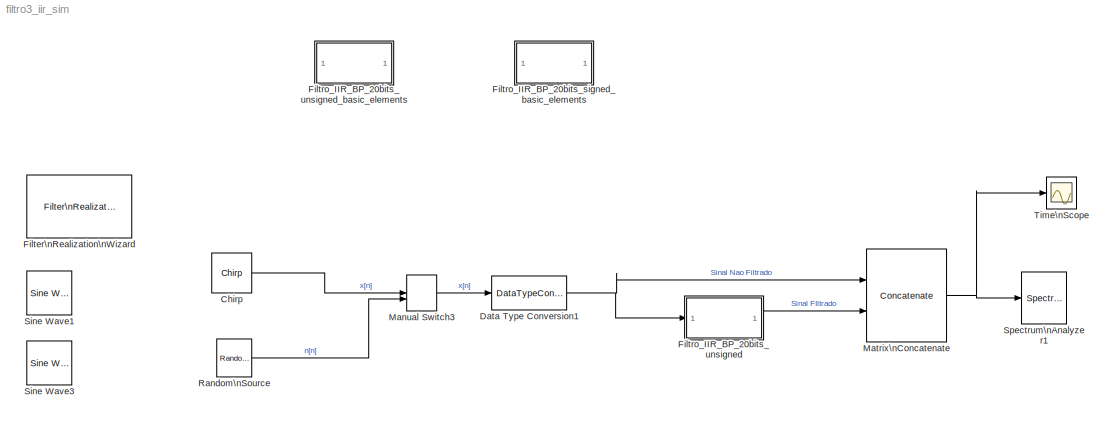
MODEL filtro3_iir_sim
KIND model
BLOCK [Reference] Chirp  REF=dspsrcs4/Chirp
  MultiThreadCoSim = auto
  OutputFrames = on
  Ports = [0, 1]
  SID = 1
  SourceBlock = dspsrcs4/Chirp
  SourceProductBaseCode = DS
  SourceProductName = DSP System Toolbox
  SourceType = Chirp
  Ts = Ta
  Tsweep = 1
  datatype = Double
  f0 = 0
  f1 = fa/2
  mode = Unidirectional
  phase = 0
  spf = spf
  sweep = Linear
  t1 = 1
BLOCK [DataTypeConversion] Data Type Conversion1
  RndMeth = Floor
  SID = 22
  SaturateOnIntegerOverflow = off
BLOCK [Reference] Filter\nRealization\nWizard  REF=dsparch4/Filter\nRealization\nWizard
  Ports = []
  SID = 44
  SourceBlock = dsparch4/Filter\nRealization\nWizard
  SourceProductBaseCode = DS
  SourceProductName = DSP System Toolbox
  SourceType = Filter Realization Wizard
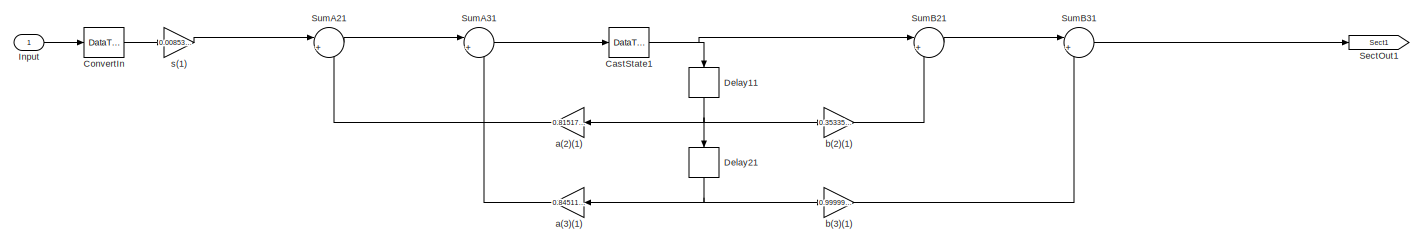
[diagram: Filtro_IIR_BP_20bits_signed_basic_elements - part 1/4, left side, full height]
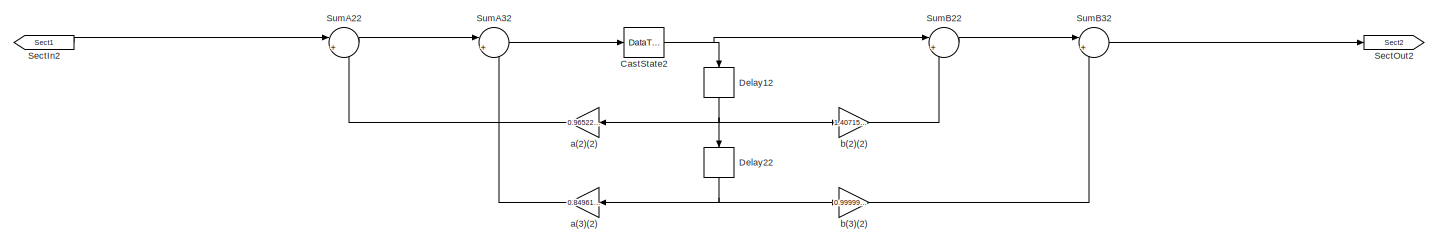
[diagram: Filtro_IIR_BP_20bits_signed_basic_elements - part 2/4, center side, full height]
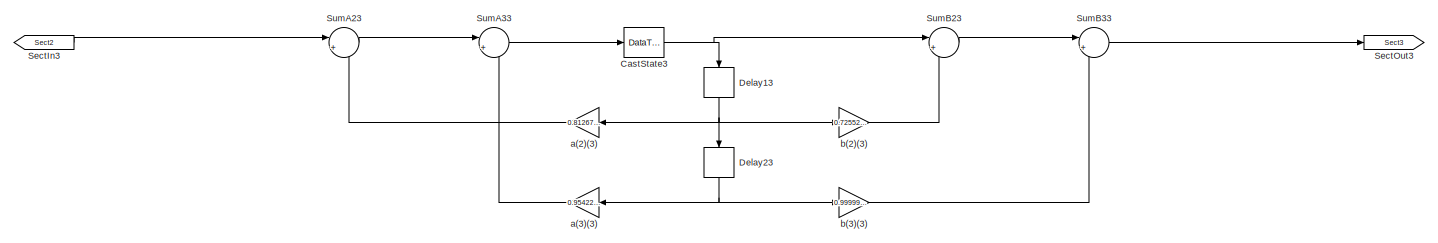
[diagram: Filtro_IIR_BP_20bits_signed_basic_elements - part 3/4, center side, full height]
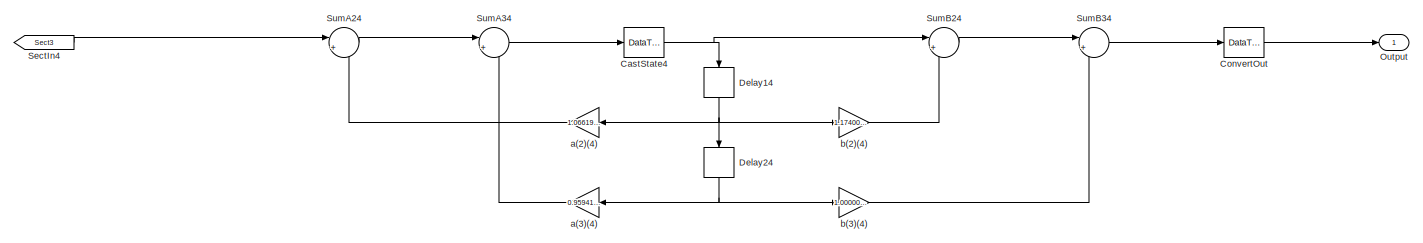
[diagram: Filtro_IIR_BP_20bits_signed_basic_elements - part 4/4, right side, full height]
BLOCK [SubSystem] Filtro_IIR_BP_20bits_signed_basic_elements
  Commented = on
  ErrorFcn = dspFilterRealizedInBasicElemsAlgLoopErrFcnCallback
  Ports = [1, 1]
  RequestExecContextInheritance = off
  SID = 293
  Tag = FilterWizardSubSystem
  UserData = DataTag0
  UserDataPersistent = on
BLOCK [DataTypeConversion] Filtro_IIR_BP_20bits_signed_basic_elements/CastState1
  OutDataTypeStr = fixdt(1,16,7)
  RndMeth = Convergent
  SID = 298
  SaturateOnIntegerOverflow = off
BLOCK [DataTypeConversion] Filtro_IIR_BP_20bits_signed_basic_elements/CastState2
  OutDataTypeStr = fixdt(1,16,7)
  RndMeth = Convergent
  SID = 312
  SaturateOnIntegerOverflow = off
BLOCK [DataTypeConversion] Filtro_IIR_BP_20bits_signed_basic_elements/CastState3
  OutDataTypeStr = fixdt(1,16,7)
  RndMeth = Convergent
  SID = 325
  SaturateOnIntegerOverflow = off
BLOCK [DataTypeConversion] Filtro_IIR_BP_20bits_signed_basic_elements/CastState4
  OutDataTypeStr = fixdt(1,16,7)
  RndMeth = Convergent
  SID = 338
  SaturateOnIntegerOverflow = off
BLOCK [DataTypeConversion] Filtro_IIR_BP_20bits_signed_basic_elements/ConvertIn
  OutDataTypeStr = fixdt(1,16,15)
  RndMeth = Nearest
  SID = 308
BLOCK [DataTypeConversion] Filtro_IIR_BP_20bits_signed_basic_elements/ConvertOut
  OutDataTypeStr = fixdt(1,16,3)
  RndMeth = Convergent
  SID = 348
  SaturateOnIntegerOverflow = off
BLOCK [Delay] Filtro_IIR_BP_20bits_signed_basic_elements/Delay11
  DelayLength = 1
  InitialCondition = 0
  InputPortMap = u0
  Ports = [1, 1]
  SID = 303
BLOCK [Delay] Filtro_IIR_BP_20bits_signed_basic_elements/Delay12
  DelayLength = 1
  InitialCondition = 0
  InputPortMap = u0
  Ports = [1, 1]
  SID = 317
BLOCK [Delay] Filtro_IIR_BP_20bits_signed_basic_elements/Delay13
  DelayLength = 1
  InitialCondition = 0
  InputPortMap = u0
  Ports = [1, 1]
  SID = 330
BLOCK [Delay] Filtro_IIR_BP_20bits_signed_basic_elements/Delay14
  DelayLength = 1
  InitialCondition = 0
  InputPortMap = u0
  Ports = [1, 1]
  SID = 343
BLOCK [Delay] Filtro_IIR_BP_20bits_signed_basic_elements/Delay21
  DelayLength = 1
  InitialCondition = 0
  InputPortMap = u0
  Ports = [1, 1]
  SID = 306
BLOCK [Delay] Filtro_IIR_BP_20bits_signed_basic_elements/Delay22
  DelayLength = 1
  InitialCondition = 0
  InputPortMap = u0
  Ports = [1, 1]
  SID = 320
BLOCK [Delay] Filtro_IIR_BP_20bits_signed_basic_elements/Delay23
  DelayLength = 1
  InitialCondition = 0
  InputPortMap = u0
  Ports = [1, 1]
  SID = 333
BLOCK [Delay] Filtro_IIR_BP_20bits_signed_basic_elements/Delay24
  DelayLength = 1
  InitialCondition = 0
  InputPortMap = u0
  Ports = [1, 1]
  SID = 346
BLOCK [Inport] Filtro_IIR_BP_20bits_signed_basic_elements/Input
  IconDisplay = Port number
  SID = 294
BLOCK [Outport] Filtro_IIR_BP_20bits_signed_basic_elements/Output
  IconDisplay = Port number
  SID = 341
BLOCK [From] Filtro_IIR_BP_20bits_signed_basic_elements/SectIn2
  GotoTag = Sect1
  SID = 309
BLOCK [From] Filtro_IIR_BP_20bits_signed_basic_elements/SectIn3
  GotoTag = Sect2
  SID = 322
BLOCK [From] Filtro_IIR_BP_20bits_signed_basic_elements/SectIn4
  GotoTag = Sect3
  SID = 335
BLOCK [Goto] Filtro_IIR_BP_20bits_signed_basic_elements/SectOut1
  GotoTag = Sect1
  SID = 301
BLOCK [Goto] Filtro_IIR_BP_20bits_signed_basic_elements/SectOut2
  GotoTag = Sect2
  SID = 315
BLOCK [Goto] Filtro_IIR_BP_20bits_signed_basic_elements/SectOut3
  GotoTag = Sect3
  SID = 328
BLOCK [Sum] Filtro_IIR_BP_20bits_signed_basic_elements/SumA21
  AccumDataTypeStr = fixdt(1,40,25)
  IconShape = round
  InputSameDT = off
  Inputs = |+-
  OutDataTypeStr = fixdt(1,40,25)
  Ports = [2, 1]
  RndMeth = Convergent
  SID = 296
  SaturateOnIntegerOverflow = off
BLOCK [Sum] Filtro_IIR_BP_20bits_signed_basic_elements/SumA22
  AccumDataTypeStr = fixdt(1,40,25)
  IconShape = round
  InputSameDT = off
  Inputs = |+-
  OutDataTypeStr = fixdt(1,40,25)
  Ports = [2, 1]
  RndMeth = Convergent
  SID = 310
  SaturateOnIntegerOverflow = off
BLOCK [Sum] Filtro_IIR_BP_20bits_signed_basic_elements/SumA23
  AccumDataTypeStr = fixdt(1,40,25)
  IconShape = round
  InputSameDT = off
  Inputs = |+-
  OutDataTypeStr = fixdt(1,40,25)
  Ports = [2, 1]
  RndMeth = Convergent
  SID = 323
  SaturateOnIntegerOverflow = off
BLOCK [Sum] Filtro_IIR_BP_20bits_signed_basic_elements/SumA24
  AccumDataTypeStr = fixdt(1,40,25)
  IconShape = round
  InputSameDT = off
  Inputs = |+-
  OutDataTypeStr = fixdt(1,40,25)
  Ports = [2, 1]
  RndMeth = Convergent
  SID = 336
  SaturateOnIntegerOverflow = off
BLOCK [Sum] Filtro_IIR_BP_20bits_signed_basic_elements/SumA31
  AccumDataTypeStr = fixdt(1,40,25)
  IconShape = round
  InputSameDT = off
  Inputs = |+-
  OutDataTypeStr = fixdt(1,40,25)
  Ports = [2, 1]
  RndMeth = Convergent
  SID = 297
  SaturateOnIntegerOverflow = off
BLOCK [Sum] Filtro_IIR_BP_20bits_signed_basic_elements/SumA32
  AccumDataTypeStr = fixdt(1,40,25)
  IconShape = round
  InputSameDT = off
  Inputs = |+-
  OutDataTypeStr = fixdt(1,40,25)
  Ports = [2, 1]
  RndMeth = Convergent
  SID = 311
  SaturateOnIntegerOverflow = off
BLOCK [Sum] Filtro_IIR_BP_20bits_signed_basic_elements/SumA33
  AccumDataTypeStr = fixdt(1,40,25)
  IconShape = round
  InputSameDT = off
  Inputs = |+-
  OutDataTypeStr = fixdt(1,40,25)
  Ports = [2, 1]
  RndMeth = Convergent
  SID = 324
  SaturateOnIntegerOverflow = off
BLOCK [Sum] Filtro_IIR_BP_20bits_signed_basic_elements/SumA34
  AccumDataTypeStr = fixdt(1,40,25)
  IconShape = round
  InputSameDT = off
  Inputs = |+-
  OutDataTypeStr = fixdt(1,40,25)
  Ports = [2, 1]
  RndMeth = Convergent
  SID = 337
  SaturateOnIntegerOverflow = off
BLOCK [Sum] Filtro_IIR_BP_20bits_signed_basic_elements/SumB21
  AccumDataTypeStr = fixdt(1,40,25)
  IconShape = round
  InputSameDT = off
  Inputs = |++
  OutDataTypeStr = fixdt(1,40,25)
  Ports = [2, 1]
  RndMeth = Convergent
  SID = 299
  SaturateOnIntegerOverflow = off
BLOCK [Sum] Filtro_IIR_BP_20bits_signed_basic_elements/SumB22
  AccumDataTypeStr = fixdt(1,40,25)
  IconShape = round
  InputSameDT = off
  Inputs = |++
  OutDataTypeStr = fixdt(1,40,25)
  Ports = [2, 1]
  RndMeth = Convergent
  SID = 313
  SaturateOnIntegerOverflow = off
BLOCK [Sum] Filtro_IIR_BP_20bits_signed_basic_elements/SumB23
  AccumDataTypeStr = fixdt(1,40,25)
  IconShape = round
  InputSameDT = off
  Inputs = |++
  OutDataTypeStr = fixdt(1,40,25)
  Ports = [2, 1]
  RndMeth = Convergent
  SID = 326
  SaturateOnIntegerOverflow = off
BLOCK [Sum] Filtro_IIR_BP_20bits_signed_basic_elements/SumB24
  AccumDataTypeStr = fixdt(1,40,25)
  IconShape = round
  InputSameDT = off
  Inputs = |++
  OutDataTypeStr = fixdt(1,40,25)
  Ports = [2, 1]
  RndMeth = Convergent
  SID = 339
  SaturateOnIntegerOverflow = off
BLOCK [Sum] Filtro_IIR_BP_20bits_signed_basic_elements/SumB31
  AccumDataTypeStr = fixdt(1,40,25)
  IconShape = round
  InputSameDT = off
  Inputs = |++
  OutDataTypeStr = fixdt(1,40,25)
  Ports = [2, 1]
  RndMeth = Convergent
  SID = 300
  SaturateOnIntegerOverflow = off
BLOCK [Sum] Filtro_IIR_BP_20bits_signed_basic_elements/SumB32
  AccumDataTypeStr = fixdt(1,40,25)
  IconShape = round
  InputSameDT = off
  Inputs = |++
  OutDataTypeStr = fixdt(1,40,25)
  Ports = [2, 1]
  RndMeth = Convergent
  SID = 314
  SaturateOnIntegerOverflow = off
BLOCK [Sum] Filtro_IIR_BP_20bits_signed_basic_elements/SumB33
  AccumDataTypeStr = fixdt(1,40,25)
  IconShape = round
  InputSameDT = off
  Inputs = |++
  OutDataTypeStr = fixdt(1,40,25)
  Ports = [2, 1]
  RndMeth = Convergent
  SID = 327
  SaturateOnIntegerOverflow = off
BLOCK [Sum] Filtro_IIR_BP_20bits_signed_basic_elements/SumB34
  AccumDataTypeStr = fixdt(1,40,25)
  IconShape = round
  InputSameDT = off
  Inputs = |++
  OutDataTypeStr = fixdt(1,40,25)
  Ports = [2, 1]
  RndMeth = Convergent
  SID = 340
  SaturateOnIntegerOverflow = off
BLOCK [Gain] Filtro_IIR_BP_20bits_signed_basic_elements/a(2)(1)
  Gain = 0.815172116422795856
  OutDataTypeStr = fixdt(1,36,25)
  ParamDataTypeStr = fixdt(1,20,18)
  RndMeth = Convergent
  SID = 302
  SaturateOnIntegerOverflow = off
BLOCK [Gain] Filtro_IIR_BP_20bits_signed_basic_elements/a(2)(2)
  Gain = 0.965222524324071074
  OutDataTypeStr = fixdt(1,36,25)
  ParamDataTypeStr = fixdt(1,20,18)
  RndMeth = Convergent
  SID = 316
  SaturateOnIntegerOverflow = off
BLOCK [Gain] Filtro_IIR_BP_20bits_signed_basic_elements/a(2)(3)
  Gain = 0.812677067672732178
  OutDataTypeStr = fixdt(1,36,25)
  ParamDataTypeStr = fixdt(1,20,18)
  RndMeth = Convergent
  SID = 329
  SaturateOnIntegerOverflow = off
BLOCK [Gain] Filtro_IIR_BP_20bits_signed_basic_elements/a(2)(4)
  Gain = 1.06619953181477434
  OutDataTypeStr = fixdt(1,36,25)
  ParamDataTypeStr = fixdt(1,20,18)
  RndMeth = Convergent
  SID = 342
  SaturateOnIntegerOverflow = off
BLOCK [Gain] Filtro_IIR_BP_20bits_signed_basic_elements/a(3)(1)
  Gain = 0.84511606787441651
  OutDataTypeStr = fixdt(1,36,25)
  ParamDataTypeStr = fixdt(1,20,18)
  RndMeth = Convergent
  SID = 305
  SaturateOnIntegerOverflow = off
BLOCK [Gain] Filtro_IIR_BP_20bits_signed_basic_elements/a(3)(2)
  Gain = 0.849612172298827684
  OutDataTypeStr = fixdt(1,36,25)
  ParamDataTypeStr = fixdt(1,20,18)
  RndMeth = Convergent
  SID = 319
  SaturateOnIntegerOverflow = off
BLOCK [Gain] Filtro_IIR_BP_20bits_signed_basic_elements/a(3)(3)
  Gain = 0.954225136114986938
  OutDataTypeStr = fixdt(1,36,25)
  ParamDataTypeStr = fixdt(1,20,18)
  RndMeth = Convergent
  SID = 332
  SaturateOnIntegerOverflow = off
BLOCK [Gain] Filtro_IIR_BP_20bits_signed_basic_elements/a(3)(4)
  Gain = 0.959417921755534975
  OutDataTypeStr = fixdt(1,36,25)
  ParamDataTypeStr = fixdt(1,20,18)
  RndMeth = Convergent
  SID = 345
  SaturateOnIntegerOverflow = off
BLOCK [Gain] Filtro_IIR_BP_20bits_signed_basic_elements/b(2)(1)
  Gain = 0.353353948679126395
  OutDataTypeStr = fixdt(1,36,25)
  ParamDataTypeStr = fixdt(1,20,18)
  RndMeth = Convergent
  SID = 304
  SaturateOnIntegerOverflow = off
BLOCK [Gain] Filtro_IIR_BP_20bits_signed_basic_elements/b(2)(2)
  Gain = 1.40715579232338883
  OutDataTypeStr = fixdt(1,36,25)
  ParamDataTypeStr = fixdt(1,20,18)
  RndMeth = Convergent
  SID = 318
  SaturateOnIntegerOverflow = off
BLOCK [Gain] Filtro_IIR_BP_20bits_signed_basic_elements/b(2)(3)
  Gain = 0.725520024065602454
  OutDataTypeStr = fixdt(1,36,25)
  ParamDataTypeStr = fixdt(1,20,18)
  RndMeth = Convergent
  SID = 331
  SaturateOnIntegerOverflow = off
BLOCK [Gain] Filtro_IIR_BP_20bits_signed_basic_elements/b(2)(4)
  Gain = 1.17400488535383563
  OutDataTypeStr = fixdt(1,36,25)
  ParamDataTypeStr = fixdt(1,20,18)
  RndMeth = Convergent
  SID = 344
  SaturateOnIntegerOverflow = off
BLOCK [Gain] Filtro_IIR_BP_20bits_signed_basic_elements/b(3)(1)
  Gain = 0.999999999999989342
  OutDataTypeStr = fixdt(1,36,25)
  ParamDataTypeStr = fixdt(1,20,18)
  RndMeth = Convergent
  SID = 307
  SaturateOnIntegerOverflow = off
BLOCK [Gain] Filtro_IIR_BP_20bits_signed_basic_elements/b(3)(2)
  Gain = 0.999999999999974687
  OutDataTypeStr = fixdt(1,36,25)
  ParamDataTypeStr = fixdt(1,20,18)
  RndMeth = Convergent
  SID = 321
  SaturateOnIntegerOverflow = off
BLOCK [Gain] Filtro_IIR_BP_20bits_signed_basic_elements/b(3)(3)
  Gain = 0.999999999999999445
  OutDataTypeStr = fixdt(1,36,25)
  ParamDataTypeStr = fixdt(1,20,18)
  RndMeth = Convergent
  SID = 334
  SaturateOnIntegerOverflow = off
BLOCK [Gain] Filtro_IIR_BP_20bits_signed_basic_elements/b(3)(4)
  Gain = 1.00000000000004086
  OutDataTypeStr = fixdt(1,36,25)
  ParamDataTypeStr = fixdt(1,20,18)
  RndMeth = Convergent
  SID = 347
  SaturateOnIntegerOverflow = off
BLOCK [Gain] Filtro_IIR_BP_20bits_signed_basic_elements/s(1)
  Gain = 0.00853204727172851562
  OutDataTypeStr = fixdt(1,16,8)
  ParamDataTypeStr = fixdt(1,20,25)
  RndMeth = Convergent
  SID = 295
  SaturateOnIntegerOverflow = off
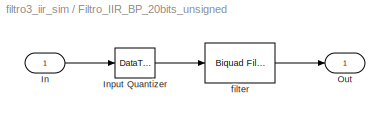
BLOCK [SubSystem] Filtro_IIR_BP_20bits_unsigned
  Ports = [1, 1]
  RequestExecContextInheritance = off
  SID = 232
  Tag = BlockMethodSubSystem
BLOCK [Inport] Filtro_IIR_BP_20bits_unsigned/In
  IconDisplay = Port number
  SID = 233
BLOCK [DataTypeConversion] Filtro_IIR_BP_20bits_unsigned/Input Quantizer
  Commented = through
  OutDataTypeStr = fixdt(1,16,15)
  RndMeth = Round
  SID = 234
BLOCK [Outport] Filtro_IIR_BP_20bits_unsigned/Out
  IconDisplay = Port number
  SID = 236
BLOCK [Reference] Filtro_IIR_BP_20bits_unsigned/filter  REF=dsparch4/Biquad Filter
  BiQuadCoeffs = [1 0.353353948679126395 0.999999999999989342 1 0.814819011151262429 0.843633602697968277;1 1.40715579232338883 0.999999999999974687 1 0.965879710982947559 0.851011920331394722;1 0.725520024065602454 0.999999999999999445 1 0.812603367593793258 0.954924333743372933;1 1.17400488535383563 1.00000000000004086 1 1.0659691505063742 0.958842711800593106]
  CoeffSource = Specify via dialog
  FilterObject = BQF
  FilterSource = Dialog parameters
  IC = 0
  ICden = 0
  ICnum = 0
  IIRFiltStruct = Direct form II
  InputProcessing = Elements as channels (sample based)
  LockScale = off
  MultiThreadCoSim = auto
  Ports = [1, 1]
  SID = 235
  ScaleValueMode = Specify via input port (g)
  ScaleValues = [0.00853204727172851562;1;1;1;1]
  SourceBlock = dsparch4/Biquad Filter
  SourceProductBaseCode = DS
  SourceProductName = DSP System Toolbox
  SourceType = Biquad Filter
  UserData = DataTag1
  UserDataPersistent = on
  a0Flag = Warning
  accumFracLength = 26
  accumMode = Binary point scaling
  accumWordLength = 40
  allowOverrides = on
  denAccumFracLength = 26
  denProdOutputFracLength = 26
  firstCoeffFracLength = 19
  firstCoeffMode = Binary point scaling
  firstCoeffWordLength = 20
  memoryFracLength = 7
  memoryMode = Binary point scaling
  memoryWordLength = 16
  multiplicandFracLength = 30
  multiplicandMode = Same as output
  multiplicandWordLength = 32
  optimizeScaleValues = on
  outputFracLength = 4
  outputMode = Binary point scaling
  outputWordLength = 16
  overflowMode = off
  prodOutputFracLength = 26
  prodOutputMode = Binary point scaling
  prodOutputWordLength = 36
  roundingMode = Convergent
  scaleValueFracLength = 26
  secondCoeffFracLength = 19
  secondCoeffMode = Same as numerator
  secondCoeffWordLength = 16
  secondMemoryFracLength = 15
  stageInputFracLength = 10
  stageInputMode = Binary point scaling
  stageInputWordLength = 16
  stageOutputFracLength = 4
  stageOutputMode = Binary point scaling
  stageOutputWordLength = 16
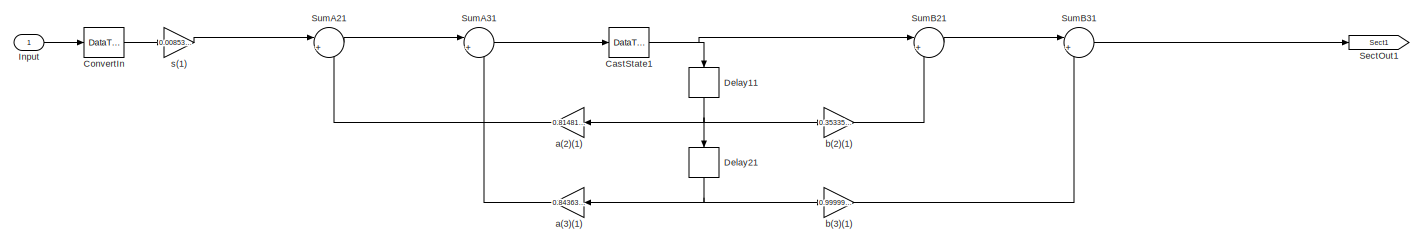
[diagram: Filtro_IIR_BP_20bits_unsigned_basic_elements - part 1/4, left side, full height]
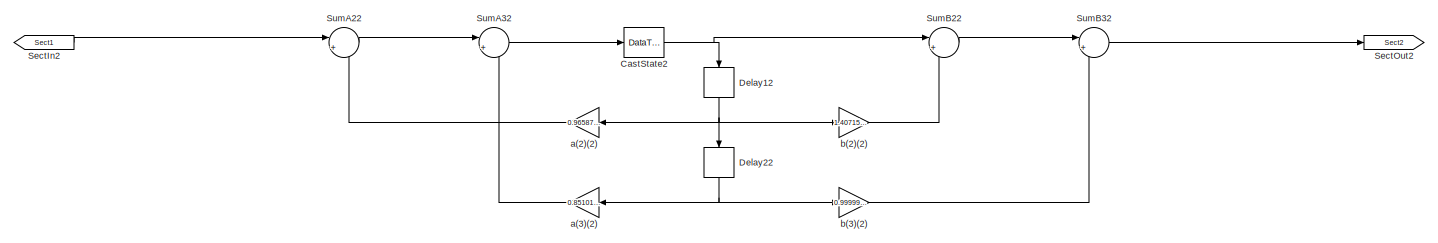
[diagram: Filtro_IIR_BP_20bits_unsigned_basic_elements - part 2/4, center side, full height]
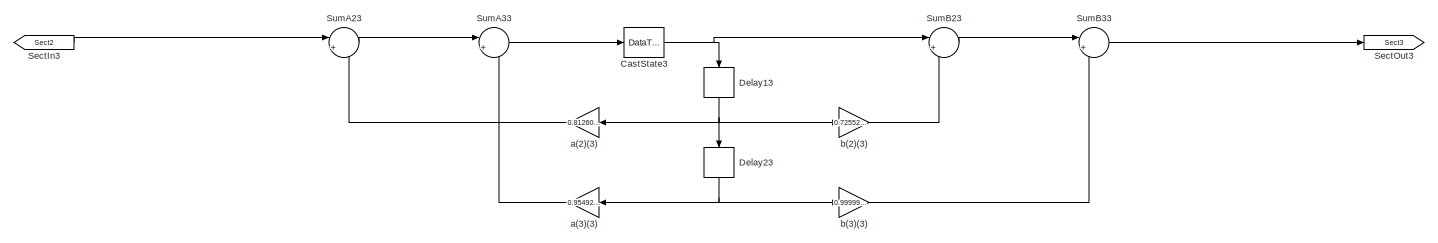
[diagram: Filtro_IIR_BP_20bits_unsigned_basic_elements - part 3/4, center side, full height]
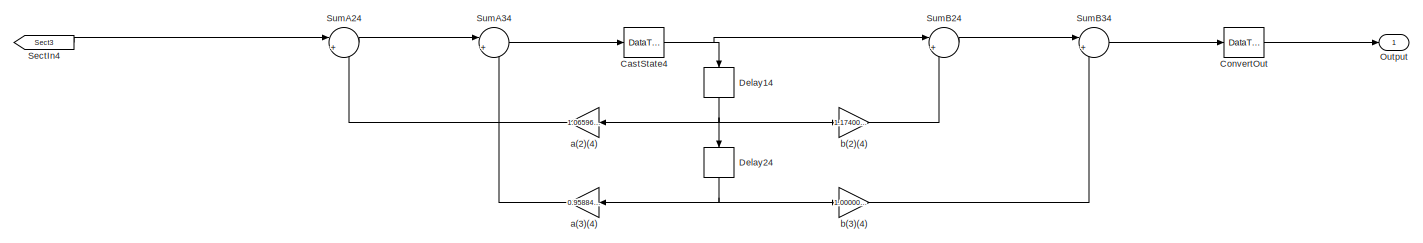
[diagram: Filtro_IIR_BP_20bits_unsigned_basic_elements - part 4/4, right side, full height]
BLOCK [SubSystem] Filtro_IIR_BP_20bits_unsigned_basic_elements
  Commented = on
  ErrorFcn = dspFilterRealizedInBasicElemsAlgLoopErrFcnCallback
  Ports = [1, 1]
  RequestExecContextInheritance = off
  SID = 237
  Tag = FilterWizardSubSystem
  UserData = DataTag2
  UserDataPersistent = on
BLOCK [DataTypeConversion] Filtro_IIR_BP_20bits_unsigned_basic_elements/CastState1
  OutDataTypeStr = fixdt(1,16,7)
  RndMeth = Convergent
  SID = 242
  SaturateOnIntegerOverflow = off
BLOCK [DataTypeConversion] Filtro_IIR_BP_20bits_unsigned_basic_elements/CastState2
  OutDataTypeStr = fixdt(1,16,7)
  RndMeth = Convergent
  SID = 256
  SaturateOnIntegerOverflow = off
BLOCK [DataTypeConversion] Filtro_IIR_BP_20bits_unsigned_basic_elements/CastState3
  OutDataTypeStr = fixdt(1,16,7)
  RndMeth = Convergent
  SID = 269
  SaturateOnIntegerOverflow = off
BLOCK [DataTypeConversion] Filtro_IIR_BP_20bits_unsigned_basic_elements/CastState4
  OutDataTypeStr = fixdt(1,16,7)
  RndMeth = Convergent
  SID = 282
  SaturateOnIntegerOverflow = off
BLOCK [DataTypeConversion] Filtro_IIR_BP_20bits_unsigned_basic_elements/ConvertIn
  OutDataTypeStr = fixdt(1,16,15)
  RndMeth = Nearest
  SID = 252
BLOCK [DataTypeConversion] Filtro_IIR_BP_20bits_unsigned_basic_elements/ConvertOut
  OutDataTypeStr = fixdt(1,16,4)
  RndMeth = Convergent
  SID = 292
  SaturateOnIntegerOverflow = off
BLOCK [Delay] Filtro_IIR_BP_20bits_unsigned_basic_elements/Delay11
  DelayLength = 1
  InitialCondition = 0
  InputPortMap = u0
  Ports = [1, 1]
  SID = 247
BLOCK [Delay] Filtro_IIR_BP_20bits_unsigned_basic_elements/Delay12
  DelayLength = 1
  InitialCondition = 0
  InputPortMap = u0
  Ports = [1, 1]
  SID = 261
BLOCK [Delay] Filtro_IIR_BP_20bits_unsigned_basic_elements/Delay13
  DelayLength = 1
  InitialCondition = 0
  InputPortMap = u0
  Ports = [1, 1]
  SID = 274
BLOCK [Delay] Filtro_IIR_BP_20bits_unsigned_basic_elements/Delay14
  DelayLength = 1
  InitialCondition = 0
  InputPortMap = u0
  Ports = [1, 1]
  SID = 287
BLOCK [Delay] Filtro_IIR_BP_20bits_unsigned_basic_elements/Delay21
  DelayLength = 1
  InitialCondition = 0
  InputPortMap = u0
  Ports = [1, 1]
  SID = 250
BLOCK [Delay] Filtro_IIR_BP_20bits_unsigned_basic_elements/Delay22
  DelayLength = 1
  InitialCondition = 0
  InputPortMap = u0
  Ports = [1, 1]
  SID = 264
BLOCK [Delay] Filtro_IIR_BP_20bits_unsigned_basic_elements/Delay23
  DelayLength = 1
  InitialCondition = 0
  InputPortMap = u0
  Ports = [1, 1]
  SID = 277
BLOCK [Delay] Filtro_IIR_BP_20bits_unsigned_basic_elements/Delay24
  DelayLength = 1
  InitialCondition = 0
  InputPortMap = u0
  Ports = [1, 1]
  SID = 290
BLOCK [Inport] Filtro_IIR_BP_20bits_unsigned_basic_elements/Input
  IconDisplay = Port number
  SID = 238
BLOCK [Outport] Filtro_IIR_BP_20bits_unsigned_basic_elements/Output
  IconDisplay = Port number
  SID = 285
BLOCK [From] Filtro_IIR_BP_20bits_unsigned_basic_elements/SectIn2
  GotoTag = Sect1
  SID = 253
BLOCK [From] Filtro_IIR_BP_20bits_unsigned_basic_elements/SectIn3
  GotoTag = Sect2
  SID = 266
BLOCK [From] Filtro_IIR_BP_20bits_unsigned_basic_elements/SectIn4
  GotoTag = Sect3
  SID = 279
BLOCK [Goto] Filtro_IIR_BP_20bits_unsigned_basic_elements/SectOut1
  GotoTag = Sect1
  SID = 245
BLOCK [Goto] Filtro_IIR_BP_20bits_unsigned_basic_elements/SectOut2
  GotoTag = Sect2
  SID = 259
BLOCK [Goto] Filtro_IIR_BP_20bits_unsigned_basic_elements/SectOut3
  GotoTag = Sect3
  SID = 272
BLOCK [Sum] Filtro_IIR_BP_20bits_unsigned_basic_elements/SumA21
  AccumDataTypeStr = fixdt(1,40,26)
  IconShape = round
  InputSameDT = off
  Inputs = |+-
  OutDataTypeStr = fixdt(1,40,26)
  Ports = [2, 1]
  RndMeth = Convergent
  SID = 240
  SaturateOnIntegerOverflow = off
BLOCK [Sum] Filtro_IIR_BP_20bits_unsigned_basic_elements/SumA22
  AccumDataTypeStr = fixdt(1,40,26)
  IconShape = round
  InputSameDT = off
  Inputs = |+-
  OutDataTypeStr = fixdt(1,40,26)
  Ports = [2, 1]
  RndMeth = Convergent
  SID = 254
  SaturateOnIntegerOverflow = off
BLOCK [Sum] Filtro_IIR_BP_20bits_unsigned_basic_elements/SumA23
  AccumDataTypeStr = fixdt(1,40,26)
  IconShape = round
  InputSameDT = off
  Inputs = |+-
  OutDataTypeStr = fixdt(1,40,26)
  Ports = [2, 1]
  RndMeth = Convergent
  SID = 267
  SaturateOnIntegerOverflow = off
BLOCK [Sum] Filtro_IIR_BP_20bits_unsigned_basic_elements/SumA24
  AccumDataTypeStr = fixdt(1,40,26)
  IconShape = round
  InputSameDT = off
  Inputs = |+-
  OutDataTypeStr = fixdt(1,40,26)
  Ports = [2, 1]
  RndMeth = Convergent
  SID = 280
  SaturateOnIntegerOverflow = off
BLOCK [Sum] Filtro_IIR_BP_20bits_unsigned_basic_elements/SumA31
  AccumDataTypeStr = fixdt(1,40,26)
  IconShape = round
  InputSameDT = off
  Inputs = |+-
  OutDataTypeStr = fixdt(1,40,26)
  Ports = [2, 1]
  RndMeth = Convergent
  SID = 241
  SaturateOnIntegerOverflow = off
BLOCK [Sum] Filtro_IIR_BP_20bits_unsigned_basic_elements/SumA32
  AccumDataTypeStr = fixdt(1,40,26)
  IconShape = round
  InputSameDT = off
  Inputs = |+-
  OutDataTypeStr = fixdt(1,40,26)
  Ports = [2, 1]
  RndMeth = Convergent
  SID = 255
  SaturateOnIntegerOverflow = off
BLOCK [Sum] Filtro_IIR_BP_20bits_unsigned_basic_elements/SumA33
  AccumDataTypeStr = fixdt(1,40,26)
  IconShape = round
  InputSameDT = off
  Inputs = |+-
  OutDataTypeStr = fixdt(1,40,26)
  Ports = [2, 1]
  RndMeth = Convergent
  SID = 268
  SaturateOnIntegerOverflow = off
BLOCK [Sum] Filtro_IIR_BP_20bits_unsigned_basic_elements/SumA34
  AccumDataTypeStr = fixdt(1,40,26)
  IconShape = round
  InputSameDT = off
  Inputs = |+-
  OutDataTypeStr = fixdt(1,40,26)
  Ports = [2, 1]
  RndMeth = Convergent
  SID = 281
  SaturateOnIntegerOverflow = off
BLOCK [Sum] Filtro_IIR_BP_20bits_unsigned_basic_elements/SumB21
  AccumDataTypeStr = fixdt(1,40,26)
  IconShape = round
  InputSameDT = off
  Inputs = |++
  OutDataTypeStr = fixdt(1,40,26)
  Ports = [2, 1]
  RndMeth = Convergent
  SID = 243
  SaturateOnIntegerOverflow = off
BLOCK [Sum] Filtro_IIR_BP_20bits_unsigned_basic_elements/SumB22
  AccumDataTypeStr = fixdt(1,40,26)
  IconShape = round
  InputSameDT = off
  Inputs = |++
  OutDataTypeStr = fixdt(1,40,26)
  Ports = [2, 1]
  RndMeth = Convergent
  SID = 257
  SaturateOnIntegerOverflow = off
BLOCK [Sum] Filtro_IIR_BP_20bits_unsigned_basic_elements/SumB23
  AccumDataTypeStr = fixdt(1,40,26)
  IconShape = round
  InputSameDT = off
  Inputs = |++
  OutDataTypeStr = fixdt(1,40,26)
  Ports = [2, 1]
  RndMeth = Convergent
  SID = 270
  SaturateOnIntegerOverflow = off
BLOCK [Sum] Filtro_IIR_BP_20bits_unsigned_basic_elements/SumB24
  AccumDataTypeStr = fixdt(1,40,26)
  IconShape = round
  InputSameDT = off
  Inputs = |++
  OutDataTypeStr = fixdt(1,40,26)
  Ports = [2, 1]
  RndMeth = Convergent
  SID = 283
  SaturateOnIntegerOverflow = off
BLOCK [Sum] Filtro_IIR_BP_20bits_unsigned_basic_elements/SumB31
  AccumDataTypeStr = fixdt(1,40,26)
  IconShape = round
  InputSameDT = off
  Inputs = |++
  OutDataTypeStr = fixdt(1,40,26)
  Ports = [2, 1]
  RndMeth = Convergent
  SID = 244
  SaturateOnIntegerOverflow = off
BLOCK [Sum] Filtro_IIR_BP_20bits_unsigned_basic_elements/SumB32
  AccumDataTypeStr = fixdt(1,40,26)
  IconShape = round
  InputSameDT = off
  Inputs = |++
  OutDataTypeStr = fixdt(1,40,26)
  Ports = [2, 1]
  RndMeth = Convergent
  SID = 258
  SaturateOnIntegerOverflow = off
BLOCK [Sum] Filtro_IIR_BP_20bits_unsigned_basic_elements/SumB33
  AccumDataTypeStr = fixdt(1,40,26)
  IconShape = round
  InputSameDT = off
  Inputs = |++
  OutDataTypeStr = fixdt(1,40,26)
  Ports = [2, 1]
  RndMeth = Convergent
  SID = 271
  SaturateOnIntegerOverflow = off
BLOCK [Sum] Filtro_IIR_BP_20bits_unsigned_basic_elements/SumB34
  AccumDataTypeStr = fixdt(1,40,26)
  IconShape = round
  InputSameDT = off
  Inputs = |++
  OutDataTypeStr = fixdt(1,40,26)
  Ports = [2, 1]
  RndMeth = Convergent
  SID = 284
  SaturateOnIntegerOverflow = off
BLOCK [Gain] Filtro_IIR_BP_20bits_unsigned_basic_elements/a(2)(1)
  Gain = 0.814819011151262429
  OutDataTypeStr = fixdt(1,36,26)
  ParamDataTypeStr = fixdt(0,20,19)
  RndMeth = Convergent
  SID = 246
  SaturateOnIntegerOverflow = off
BLOCK [Gain] Filtro_IIR_BP_20bits_unsigned_basic_elements/a(2)(2)
  Gain = 0.965879710982947559
  OutDataTypeStr = fixdt(1,36,26)
  ParamDataTypeStr = fixdt(0,20,19)
  RndMeth = Convergent
  SID = 260
  SaturateOnIntegerOverflow = off
BLOCK [Gain] Filtro_IIR_BP_20bits_unsigned_basic_elements/a(2)(3)
  Gain = 0.812603367593793258
  OutDataTypeStr = fixdt(1,36,26)
  ParamDataTypeStr = fixdt(0,20,19)
  RndMeth = Convergent
  SID = 273
  SaturateOnIntegerOverflow = off
BLOCK [Gain] Filtro_IIR_BP_20bits_unsigned_basic_elements/a(2)(4)
  Gain = 1.0659691505063742
  OutDataTypeStr = fixdt(1,36,26)
  ParamDataTypeStr = fixdt(0,20,19)
  RndMeth = Convergent
  SID = 286
  SaturateOnIntegerOverflow = off
BLOCK [Gain] Filtro_IIR_BP_20bits_unsigned_basic_elements/a(3)(1)
  Gain = 0.843633602697968277
  OutDataTypeStr = fixdt(1,36,26)
  ParamDataTypeStr = fixdt(0,20,19)
  RndMeth = Convergent
  SID = 249
  SaturateOnIntegerOverflow = off
BLOCK [Gain] Filtro_IIR_BP_20bits_unsigned_basic_elements/a(3)(2)
  Gain = 0.851011920331394722
  OutDataTypeStr = fixdt(1,36,26)
  ParamDataTypeStr = fixdt(0,20,19)
  RndMeth = Convergent
  SID = 263
  SaturateOnIntegerOverflow = off
BLOCK [Gain] Filtro_IIR_BP_20bits_unsigned_basic_elements/a(3)(3)
  Gain = 0.954924333743372933
  OutDataTypeStr = fixdt(1,36,26)
  ParamDataTypeStr = fixdt(0,20,19)
  RndMeth = Convergent
  SID = 276
  SaturateOnIntegerOverflow = off
BLOCK [Gain] Filtro_IIR_BP_20bits_unsigned_basic_elements/a(3)(4)
  Gain = 0.958842711800593106
  OutDataTypeStr = fixdt(1,36,26)
  ParamDataTypeStr = fixdt(0,20,19)
  RndMeth = Convergent
  SID = 289
  SaturateOnIntegerOverflow = off
BLOCK [Gain] Filtro_IIR_BP_20bits_unsigned_basic_elements/b(2)(1)
  Gain = 0.353353948679126395
  OutDataTypeStr = fixdt(1,36,26)
  ParamDataTypeStr = fixdt(0,20,19)
  RndMeth = Convergent
  SID = 248
  SaturateOnIntegerOverflow = off
BLOCK [Gain] Filtro_IIR_BP_20bits_unsigned_basic_elements/b(2)(2)
  Gain = 1.40715579232338883
  OutDataTypeStr = fixdt(1,36,26)
  ParamDataTypeStr = fixdt(0,20,19)
  RndMeth = Convergent
  SID = 262
  SaturateOnIntegerOverflow = off
BLOCK [Gain] Filtro_IIR_BP_20bits_unsigned_basic_elements/b(2)(3)
  Gain = 0.725520024065602454
  OutDataTypeStr = fixdt(1,36,26)
  ParamDataTypeStr = fixdt(0,20,19)
  RndMeth = Convergent
  SID = 275
  SaturateOnIntegerOverflow = off
BLOCK [Gain] Filtro_IIR_BP_20bits_unsigned_basic_elements/b(2)(4)
  Gain = 1.17400488535383563
  OutDataTypeStr = fixdt(1,36,26)
  ParamDataTypeStr = fixdt(0,20,19)
  RndMeth = Convergent
  SID = 288
  SaturateOnIntegerOverflow = off
BLOCK [Gain] Filtro_IIR_BP_20bits_unsigned_basic_elements/b(3)(1)
  Gain = 0.999999999999989342
  OutDataTypeStr = fixdt(1,36,26)
  ParamDataTypeStr = fixdt(0,20,19)
  RndMeth = Convergent
  SID = 251
  SaturateOnIntegerOverflow = off
BLOCK [Gain] Filtro_IIR_BP_20bits_unsigned_basic_elements/b(3)(2)
  Gain = 0.999999999999974687
  OutDataTypeStr = fixdt(1,36,26)
  ParamDataTypeStr = fixdt(0,20,19)
  RndMeth = Convergent
  SID = 265
  SaturateOnIntegerOverflow = off
BLOCK [Gain] Filtro_IIR_BP_20bits_unsigned_basic_elements/b(3)(3)
  Gain = 0.999999999999999445
  OutDataTypeStr = fixdt(1,36,26)
  ParamDataTypeStr = fixdt(0,20,19)
  RndMeth = Convergent
  SID = 278
  SaturateOnIntegerOverflow = off
BLOCK [Gain] Filtro_IIR_BP_20bits_unsigned_basic_elements/b(3)(4)
  Gain = 1.00000000000004086
  OutDataTypeStr = fixdt(1,36,26)
  ParamDataTypeStr = fixdt(0,20,19)
  RndMeth = Convergent
  SID = 291
  SaturateOnIntegerOverflow = off
BLOCK [Gain] Filtro_IIR_BP_20bits_unsigned_basic_elements/s(1)
  Gain = 0.00853204727172851562
  OutDataTypeStr = fixdt(1,16,10)
  ParamDataTypeStr = fixdt(0,20,26)
  RndMeth = Convergent
  SID = 239
  SaturateOnIntegerOverflow = off
BLOCK [ManualSwitch] Manual Switch3
  SID = 33
BLOCK [Concatenate] Matrix\nConcatenate
  ConcatenateDimension = 2
  Mode = Multidimensional array
  Ports = [2, 1]
  SID = 28
BLOCK [Reference] Random\nSource  REF=dspsrcs4/Random\nSource
  CltLength = 12
  DataType = Single
  IsInherit = off
  MaxVal = 1
  MeanVal = 0
  MinVal = -1
  MultiThreadCoSim = auto
  NormMethod = Ziggurat
  OutComplex = Real
  OutputFrames = on
  Ports = [0, 1]
  RepMode = Not repeatable
  SID = 32
  SampFrame = spf
  SampMode = Discrete
  SampTime = Ta
  SourceBlock = dspsrcs4/Random\nSource
  SourceProductBaseCode = DS
  SourceProductName = DSP System Toolbox
  SourceType = Random Source
  SrcType = Uniform
  UserData = DataTag3
  UserDataPersistent = on
  VarVal = 1
  rawSeed = 1
BLOCK [Reference] Sine Wave1  REF=dspsrcs4/Sine Wave
  Amplitude = 1
  Commented = on
  CompMethod = Trigonometric fcn
  Frequency = 100
  LastOutDataTypeStr = double
  MultiThreadCoSim = auto
  OutComplex = Real
  OutDataTypeStr = double
  OutputFrames = on
  Phase = 0
  Ports = [0, 1]
  ResetState = Restart at time zero
  SID = 38
  SampleMode = Discrete
  SampleTime = 1/8000
  SamplesPerFrame = 1
  SourceBlock = dspsrcs4/Sine Wave
  SourceProductBaseCode = DS
  SourceProductName = DSP System Toolbox
  SourceType = Sine Wave
  TableSize = Speed
  additionalParams = off
  allowOverrides = on
  dataType = double
  fracBitsMode = Best precision
  numFracBits = 15
  udDataType = sfix(16)
  wordLen = 16
BLOCK [Reference] Sine Wave3  REF=dspsrcs4/Sine Wave
  Amplitude = 1
  Commented = on
  CompMethod = Trigonometric fcn
  Frequency = 100
  LastOutDataTypeStr = double
  MultiThreadCoSim = auto
  OutComplex = Real
  OutDataTypeStr = double
  OutputFrames = on
  Phase = 0
  Ports = [0, 1]
  ResetState = Restart at time zero
  SID = 40
  SampleMode = Discrete
  SampleTime = 1/8000
  SamplesPerFrame = 1
  SourceBlock = dspsrcs4/Sine Wave
  SourceProductBaseCode = DS
  SourceProductName = DSP System Toolbox
  SourceType = Sine Wave
  TableSize = Speed
  additionalParams = off
  allowOverrides = on
  dataType = double
  fracBitsMode = Best precision
  numFracBits = 15
  udDataType = sfix(16)
  wordLen = 16
BLOCK [SpectrumAnalyzer] Spectrum\nAnalyzer1
  Ports = [1]
  SID = 30
  ScopeSpecificationString = spbscopes.SpectrumAnalyzerBlockCfg('CurrentConfiguration', extmgr.ConfigurationSet(extmgr.Configuration('Core','General UI',true,'FigureColor',[1 1 1]),extmgr.Configuration('Core','Source UI',true),extmgr.Configuration('Sources','WiredSimulink',true),extmgr.Configuration('Sources','Workspace',false),extmgr.Configuration('Sources','File',false),extmgr.Configuration('Sources','Simulink',false),extmg...<+3561ch>
BLOCK [Scope] Time\nScope
  DefaultConfigurationName = spbscopes.TimeScopeBlockCfg
  Floating = off
  NumInputPorts = 1
  Ports = [1]
  SID = 50
  ScopeSpecificationString = spbscopes.TimeScopeBlockCfg('CurrentConfiguration', extmgr.ConfigurationSet(extmgr.Configuration('Core','General UI',true,'FigureColor',[1 1 1]),extmgr.Configuration('Core','Source UI',true),extmgr.Configuration('Sources','WiredSimulink',true),extmgr.Configuration('Visuals','Time Domain',true,'DisplayPropertyDefaults',struct('MinYLimReal','-1.24994','MaxYLimReal','1.24945','YLabelReal','Amplitude'...<+1691ch>
  UserDataPersistent = on
LINE Chirp:1 -> Manual Switch3:1
NET Data Type Conversion1:1 -> Filtro_IIR_BP_20bits_unsigned:1, Matrix\nConcatenate:1
NET Filtro_IIR_BP_20bits_signed_basic_elements/CastState1:1 -> Filtro_IIR_BP_20bits_signed_basic_elements/Delay11:1, Filtro_IIR_BP_20bits_signed_basic_elements/SumB21:1
NET Filtro_IIR_BP_20bits_signed_basic_elements/CastState2:1 -> Filtro_IIR_BP_20bits_signed_basic_elements/Delay12:1, Filtro_IIR_BP_20bits_signed_basic_elements/SumB22:1
NET Filtro_IIR_BP_20bits_signed_basic_elements/CastState3:1 -> Filtro_IIR_BP_20bits_signed_basic_elements/Delay13:1, Filtro_IIR_BP_20bits_signed_basic_elements/SumB23:1
NET Filtro_IIR_BP_20bits_signed_basic_elements/CastState4:1 -> Filtro_IIR_BP_20bits_signed_basic_elements/Delay14:1, Filtro_IIR_BP_20bits_signed_basic_elements/SumB24:1
LINE Filtro_IIR_BP_20bits_signed_basic_elements/ConvertIn:1 -> Filtro_IIR_BP_20bits_signed_basic_elements/s(1):1
LINE Filtro_IIR_BP_20bits_signed_basic_elements/ConvertOut:1 -> Filtro_IIR_BP_20bits_signed_basic_elements/Output:1
NET Filtro_IIR_BP_20bits_signed_basic_elements/Delay11:1 -> Filtro_IIR_BP_20bits_signed_basic_elements/Delay21:1, Filtro_IIR_BP_20bits_signed_basic_elements/a(2)(1):1, Filtro_IIR_BP_20bits_signed_basic_elements/b(2)(1):1
NET Filtro_IIR_BP_20bits_signed_basic_elements/Delay12:1 -> Filtro_IIR_BP_20bits_signed_basic_elements/Delay22:1, Filtro_IIR_BP_20bits_signed_basic_elements/a(2)(2):1, Filtro_IIR_BP_20bits_signed_basic_elements/b(2)(2):1
NET Filtro_IIR_BP_20bits_signed_basic_elements/Delay13:1 -> Filtro_IIR_BP_20bits_signed_basic_elements/Delay23:1, Filtro_IIR_BP_20bits_signed_basic_elements/a(2)(3):1, Filtro_IIR_BP_20bits_signed_basic_elements/b(2)(3):1
NET Filtro_IIR_BP_20bits_signed_basic_elements/Delay14:1 -> Filtro_IIR_BP_20bits_signed_basic_elements/Delay24:1, Filtro_IIR_BP_20bits_signed_basic_elements/a(2)(4):1, Filtro_IIR_BP_20bits_signed_basic_elements/b(2)(4):1
NET Filtro_IIR_BP_20bits_signed_basic_elements/Delay21:1 -> Filtro_IIR_BP_20bits_signed_basic_elements/a(3)(1):1, Filtro_IIR_BP_20bits_signed_basic_elements/b(3)(1):1
NET Filtro_IIR_BP_20bits_signed_basic_elements/Delay22:1 -> Filtro_IIR_BP_20bits_signed_basic_elements/a(3)(2):1, Filtro_IIR_BP_20bits_signed_basic_elements/b(3)(2):1
NET Filtro_IIR_BP_20bits_signed_basic_elements/Delay23:1 -> Filtro_IIR_BP_20bits_signed_basic_elements/a(3)(3):1, Filtro_IIR_BP_20bits_signed_basic_elements/b(3)(3):1
NET Filtro_IIR_BP_20bits_signed_basic_elements/Delay24:1 -> Filtro_IIR_BP_20bits_signed_basic_elements/a(3)(4):1, Filtro_IIR_BP_20bits_signed_basic_elements/b(3)(4):1
LINE Filtro_IIR_BP_20bits_signed_basic_elements/Input:1 -> Filtro_IIR_BP_20bits_signed_basic_elements/ConvertIn:1
LINE Filtro_IIR_BP_20bits_signed_basic_elements/SectIn2:1 -> Filtro_IIR_BP_20bits_signed_basic_elements/SumA22:1
LINE Filtro_IIR_BP_20bits_signed_basic_elements/SectIn3:1 -> Filtro_IIR_BP_20bits_signed_basic_elements/SumA23:1
LINE Filtro_IIR_BP_20bits_signed_basic_elements/SectIn4:1 -> Filtro_IIR_BP_20bits_signed_basic_elements/SumA24:1
LINE Filtro_IIR_BP_20bits_signed_basic_elements/SumA21:1 -> Filtro_IIR_BP_20bits_signed_basic_elements/SumA31:1
LINE Filtro_IIR_BP_20bits_signed_basic_elements/SumA22:1 -> Filtro_IIR_BP_20bits_signed_basic_elements/SumA32:1
LINE Filtro_IIR_BP_20bits_signed_basic_elements/SumA23:1 -> Filtro_IIR_BP_20bits_signed_basic_elements/SumA33:1
LINE Filtro_IIR_BP_20bits_signed_basic_elements/SumA24:1 -> Filtro_IIR_BP_20bits_signed_basic_elements/SumA34:1
LINE Filtro_IIR_BP_20bits_signed_basic_elements/SumA31:1 -> Filtro_IIR_BP_20bits_signed_basic_elements/CastState1:1
LINE Filtro_IIR_BP_20bits_signed_basic_elements/SumA32:1 -> Filtro_IIR_BP_20bits_signed_basic_elements/CastState2:1
LINE Filtro_IIR_BP_20bits_signed_basic_elements/SumA33:1 -> Filtro_IIR_BP_20bits_signed_basic_elements/CastState3:1
LINE Filtro_IIR_BP_20bits_signed_basic_elements/SumA34:1 -> Filtro_IIR_BP_20bits_signed_basic_elements/CastState4:1
LINE Filtro_IIR_BP_20bits_signed_basic_elements/SumB21:1 -> Filtro_IIR_BP_20bits_signed_basic_elements/SumB31:1
LINE Filtro_IIR_BP_20bits_signed_basic_elements/SumB22:1 -> Filtro_IIR_BP_20bits_signed_basic_elements/SumB32:1
LINE Filtro_IIR_BP_20bits_signed_basic_elements/SumB23:1 -> Filtro_IIR_BP_20bits_signed_basic_elements/SumB33:1
LINE Filtro_IIR_BP_20bits_signed_basic_elements/SumB24:1 -> Filtro_IIR_BP_20bits_signed_basic_elements/SumB34:1
LINE Filtro_IIR_BP_20bits_signed_basic_elements/SumB31:1 -> Filtro_IIR_BP_20bits_signed_basic_elements/SectOut1:1
LINE Filtro_IIR_BP_20bits_signed_basic_elements/SumB32:1 -> Filtro_IIR_BP_20bits_signed_basic_elements/SectOut2:1
LINE Filtro_IIR_BP_20bits_signed_basic_elements/SumB33:1 -> Filtro_IIR_BP_20bits_signed_basic_elements/SectOut3:1
LINE Filtro_IIR_BP_20bits_signed_basic_elements/SumB34:1 -> Filtro_IIR_BP_20bits_signed_basic_elements/ConvertOut:1
LINE Filtro_IIR_BP_20bits_signed_basic_elements/a(2)(1):1 -> Filtro_IIR_BP_20bits_signed_basic_elements/SumA21:2
LINE Filtro_IIR_BP_20bits_signed_basic_elements/a(2)(2):1 -> Filtro_IIR_BP_20bits_signed_basic_elements/SumA22:2
LINE Filtro_IIR_BP_20bits_signed_basic_elements/a(2)(3):1 -> Filtro_IIR_BP_20bits_signed_basic_elements/SumA23:2
LINE Filtro_IIR_BP_20bits_signed_basic_elements/a(2)(4):1 -> Filtro_IIR_BP_20bits_signed_basic_elements/SumA24:2
LINE Filtro_IIR_BP_20bits_signed_basic_elements/a(3)(1):1 -> Filtro_IIR_BP_20bits_signed_basic_elements/SumA31:2
LINE Filtro_IIR_BP_20bits_signed_basic_elements/a(3)(2):1 -> Filtro_IIR_BP_20bits_signed_basic_elements/SumA32:2
LINE Filtro_IIR_BP_20bits_signed_basic_elements/a(3)(3):1 -> Filtro_IIR_BP_20bits_signed_basic_elements/SumA33:2
LINE Filtro_IIR_BP_20bits_signed_basic_elements/a(3)(4):1 -> Filtro_IIR_BP_20bits_signed_basic_elements/SumA34:2
LINE Filtro_IIR_BP_20bits_signed_basic_elements/b(2)(1):1 -> Filtro_IIR_BP_20bits_signed_basic_elements/SumB21:2
LINE Filtro_IIR_BP_20bits_signed_basic_elements/b(2)(2):1 -> Filtro_IIR_BP_20bits_signed_basic_elements/SumB22:2
LINE Filtro_IIR_BP_20bits_signed_basic_elements/b(2)(3):1 -> Filtro_IIR_BP_20bits_signed_basic_elements/SumB23:2
LINE Filtro_IIR_BP_20bits_signed_basic_elements/b(2)(4):1 -> Filtro_IIR_BP_20bits_signed_basic_elements/SumB24:2
LINE Filtro_IIR_BP_20bits_signed_basic_elements/b(3)(1):1 -> Filtro_IIR_BP_20bits_signed_basic_elements/SumB31:2
LINE Filtro_IIR_BP_20bits_signed_basic_elements/b(3)(2):1 -> Filtro_IIR_BP_20bits_signed_basic_elements/SumB32:2
LINE Filtro_IIR_BP_20bits_signed_basic_elements/b(3)(3):1 -> Filtro_IIR_BP_20bits_signed_basic_elements/SumB33:2
LINE Filtro_IIR_BP_20bits_signed_basic_elements/b(3)(4):1 -> Filtro_IIR_BP_20bits_signed_basic_elements/SumB34:2
LINE Filtro_IIR_BP_20bits_signed_basic_elements/s(1):1 -> Filtro_IIR_BP_20bits_signed_basic_elements/SumA21:1
LINE Filtro_IIR_BP_20bits_unsigned/In:1 -> Filtro_IIR_BP_20bits_unsigned/Input Quantizer:1
LINE Filtro_IIR_BP_20bits_unsigned/Input Quantizer:1 -> Filtro_IIR_BP_20bits_unsigned/filter:1
LINE Filtro_IIR_BP_20bits_unsigned/filter:1 -> Filtro_IIR_BP_20bits_unsigned/Out:1
LINE Filtro_IIR_BP_20bits_unsigned:1 -> Matrix\nConcatenate:2
NET Filtro_IIR_BP_20bits_unsigned_basic_elements/CastState1:1 -> Filtro_IIR_BP_20bits_unsigned_basic_elements/Delay11:1, Filtro_IIR_BP_20bits_unsigned_basic_elements/SumB21:1
NET Filtro_IIR_BP_20bits_unsigned_basic_elements/CastState2:1 -> Filtro_IIR_BP_20bits_unsigned_basic_elements/Delay12:1, Filtro_IIR_BP_20bits_unsigned_basic_elements/SumB22:1
NET Filtro_IIR_BP_20bits_unsigned_basic_elements/CastState3:1 -> Filtro_IIR_BP_20bits_unsigned_basic_elements/Delay13:1, Filtro_IIR_BP_20bits_unsigned_basic_elements/SumB23:1
NET Filtro_IIR_BP_20bits_unsigned_basic_elements/CastState4:1 -> Filtro_IIR_BP_20bits_unsigned_basic_elements/Delay14:1, Filtro_IIR_BP_20bits_unsigned_basic_elements/SumB24:1
LINE Filtro_IIR_BP_20bits_unsigned_basic_elements/ConvertIn:1 -> Filtro_IIR_BP_20bits_unsigned_basic_elements/s(1):1
LINE Filtro_IIR_BP_20bits_unsigned_basic_elements/ConvertOut:1 -> Filtro_IIR_BP_20bits_unsigned_basic_elements/Output:1
NET Filtro_IIR_BP_20bits_unsigned_basic_elements/Delay11:1 -> Filtro_IIR_BP_20bits_unsigned_basic_elements/Delay21:1, Filtro_IIR_BP_20bits_unsigned_basic_elements/a(2)(1):1, Filtro_IIR_BP_20bits_unsigned_basic_elements/b(2)(1):1
NET Filtro_IIR_BP_20bits_unsigned_basic_elements/Delay12:1 -> Filtro_IIR_BP_20bits_unsigned_basic_elements/Delay22:1, Filtro_IIR_BP_20bits_unsigned_basic_elements/a(2)(2):1, Filtro_IIR_BP_20bits_unsigned_basic_elements/b(2)(2):1
NET Filtro_IIR_BP_20bits_unsigned_basic_elements/Delay13:1 -> Filtro_IIR_BP_20bits_unsigned_basic_elements/Delay23:1, Filtro_IIR_BP_20bits_unsigned_basic_elements/a(2)(3):1, Filtro_IIR_BP_20bits_unsigned_basic_elements/b(2)(3):1
NET Filtro_IIR_BP_20bits_unsigned_basic_elements/Delay14:1 -> Filtro_IIR_BP_20bits_unsigned_basic_elements/Delay24:1, Filtro_IIR_BP_20bits_unsigned_basic_elements/a(2)(4):1, Filtro_IIR_BP_20bits_unsigned_basic_elements/b(2)(4):1
NET Filtro_IIR_BP_20bits_unsigned_basic_elements/Delay21:1 -> Filtro_IIR_BP_20bits_unsigned_basic_elements/a(3)(1):1, Filtro_IIR_BP_20bits_unsigned_basic_elements/b(3)(1):1
NET Filtro_IIR_BP_20bits_unsigned_basic_elements/Delay22:1 -> Filtro_IIR_BP_20bits_unsigned_basic_elements/a(3)(2):1, Filtro_IIR_BP_20bits_unsigned_basic_elements/b(3)(2):1
NET Filtro_IIR_BP_20bits_unsigned_basic_elements/Delay23:1 -> Filtro_IIR_BP_20bits_unsigned_basic_elements/a(3)(3):1, Filtro_IIR_BP_20bits_unsigned_basic_elements/b(3)(3):1
NET Filtro_IIR_BP_20bits_unsigned_basic_elements/Delay24:1 -> Filtro_IIR_BP_20bits_unsigned_basic_elements/a(3)(4):1, Filtro_IIR_BP_20bits_unsigned_basic_elements/b(3)(4):1
LINE Filtro_IIR_BP_20bits_unsigned_basic_elements/Input:1 -> Filtro_IIR_BP_20bits_unsigned_basic_elements/ConvertIn:1
LINE Filtro_IIR_BP_20bits_unsigned_basic_elements/SectIn2:1 -> Filtro_IIR_BP_20bits_unsigned_basic_elements/SumA22:1
LINE Filtro_IIR_BP_20bits_unsigned_basic_elements/SectIn3:1 -> Filtro_IIR_BP_20bits_unsigned_basic_elements/SumA23:1
LINE Filtro_IIR_BP_20bits_unsigned_basic_elements/SectIn4:1 -> Filtro_IIR_BP_20bits_unsigned_basic_elements/SumA24:1
LINE Filtro_IIR_BP_20bits_unsigned_basic_elements/SumA21:1 -> Filtro_IIR_BP_20bits_unsigned_basic_elements/SumA31:1
LINE Filtro_IIR_BP_20bits_unsigned_basic_elements/SumA22:1 -> Filtro_IIR_BP_20bits_unsigned_basic_elements/SumA32:1
LINE Filtro_IIR_BP_20bits_unsigned_basic_elements/SumA23:1 -> Filtro_IIR_BP_20bits_unsigned_basic_elements/SumA33:1
LINE Filtro_IIR_BP_20bits_unsigned_basic_elements/SumA24:1 -> Filtro_IIR_BP_20bits_unsigned_basic_elements/SumA34:1
LINE Filtro_IIR_BP_20bits_unsigned_basic_elements/SumA31:1 -> Filtro_IIR_BP_20bits_unsigned_basic_elements/CastState1:1
LINE Filtro_IIR_BP_20bits_unsigned_basic_elements/SumA32:1 -> Filtro_IIR_BP_20bits_unsigned_basic_elements/CastState2:1
LINE Filtro_IIR_BP_20bits_unsigned_basic_elements/SumA33:1 -> Filtro_IIR_BP_20bits_unsigned_basic_elements/CastState3:1
LINE Filtro_IIR_BP_20bits_unsigned_basic_elements/SumA34:1 -> Filtro_IIR_BP_20bits_unsigned_basic_elements/CastState4:1
LINE Filtro_IIR_BP_20bits_unsigned_basic_elements/SumB21:1 -> Filtro_IIR_BP_20bits_unsigned_basic_elements/SumB31:1
LINE Filtro_IIR_BP_20bits_unsigned_basic_elements/SumB22:1 -> Filtro_IIR_BP_20bits_unsigned_basic_elements/SumB32:1
LINE Filtro_IIR_BP_20bits_unsigned_basic_elements/SumB23:1 -> Filtro_IIR_BP_20bits_unsigned_basic_elements/SumB33:1
LINE Filtro_IIR_BP_20bits_unsigned_basic_elements/SumB24:1 -> Filtro_IIR_BP_20bits_unsigned_basic_elements/SumB34:1
LINE Filtro_IIR_BP_20bits_unsigned_basic_elements/SumB31:1 -> Filtro_IIR_BP_20bits_unsigned_basic_elements/SectOut1:1
LINE Filtro_IIR_BP_20bits_unsigned_basic_elements/SumB32:1 -> Filtro_IIR_BP_20bits_unsigned_basic_elements/SectOut2:1
LINE Filtro_IIR_BP_20bits_unsigned_basic_elements/SumB33:1 -> Filtro_IIR_BP_20bits_unsigned_basic_elements/SectOut3:1
LINE Filtro_IIR_BP_20bits_unsigned_basic_elements/SumB34:1 -> Filtro_IIR_BP_20bits_unsigned_basic_elements/ConvertOut:1
LINE Filtro_IIR_BP_20bits_unsigned_basic_elements/a(2)(1):1 -> Filtro_IIR_BP_20bits_unsigned_basic_elements/SumA21:2
LINE Filtro_IIR_BP_20bits_unsigned_basic_elements/a(2)(2):1 -> Filtro_IIR_BP_20bits_unsigned_basic_elements/SumA22:2
LINE Filtro_IIR_BP_20bits_unsigned_basic_elements/a(2)(3):1 -> Filtro_IIR_BP_20bits_unsigned_basic_elements/SumA23:2
LINE Filtro_IIR_BP_20bits_unsigned_basic_elements/a(2)(4):1 -> Filtro_IIR_BP_20bits_unsigned_basic_elements/SumA24:2
LINE Filtro_IIR_BP_20bits_unsigned_basic_elements/a(3)(1):1 -> Filtro_IIR_BP_20bits_unsigned_basic_elements/SumA31:2
LINE Filtro_IIR_BP_20bits_unsigned_basic_elements/a(3)(2):1 -> Filtro_IIR_BP_20bits_unsigned_basic_elements/SumA32:2
LINE Filtro_IIR_BP_20bits_unsigned_basic_elements/a(3)(3):1 -> Filtro_IIR_BP_20bits_unsigned_basic_elements/SumA33:2
LINE Filtro_IIR_BP_20bits_unsigned_basic_elements/a(3)(4):1 -> Filtro_IIR_BP_20bits_unsigned_basic_elements/SumA34:2
LINE Filtro_IIR_BP_20bits_unsigned_basic_elements/b(2)(1):1 -> Filtro_IIR_BP_20bits_unsigned_basic_elements/SumB21:2
LINE Filtro_IIR_BP_20bits_unsigned_basic_elements/b(2)(2):1 -> Filtro_IIR_BP_20bits_unsigned_basic_elements/SumB22:2
LINE Filtro_IIR_BP_20bits_unsigned_basic_elements/b(2)(3):1 -> Filtro_IIR_BP_20bits_unsigned_basic_elements/SumB23:2
LINE Filtro_IIR_BP_20bits_unsigned_basic_elements/b(2)(4):1 -> Filtro_IIR_BP_20bits_unsigned_basic_elements/SumB24:2
LINE Filtro_IIR_BP_20bits_unsigned_basic_elements/b(3)(1):1 -> Filtro_IIR_BP_20bits_unsigned_basic_elements/SumB31:2
LINE Filtro_IIR_BP_20bits_unsigned_basic_elements/b(3)(2):1 -> Filtro_IIR_BP_20bits_unsigned_basic_elements/SumB32:2
LINE Filtro_IIR_BP_20bits_unsigned_basic_elements/b(3)(3):1 -> Filtro_IIR_BP_20bits_unsigned_basic_elements/SumB33:2
LINE Filtro_IIR_BP_20bits_unsigned_basic_elements/b(3)(4):1 -> Filtro_IIR_BP_20bits_unsigned_basic_elements/SumB34:2
LINE Filtro_IIR_BP_20bits_unsigned_basic_elements/s(1):1 -> Filtro_IIR_BP_20bits_unsigned_basic_elements/SumA21:1
LINE Manual Switch3:1 -> Data Type Conversion1:1
NET Matrix\nConcatenate:1 -> Spectrum\nAnalyzer1:1, Time\nScope:1
LINE Random\nSource:1 -> Manual Switch3:2
note: NET lines group one-source signal fan-out (src -> all destinations, sorted); 1:1 wires keep LINE
